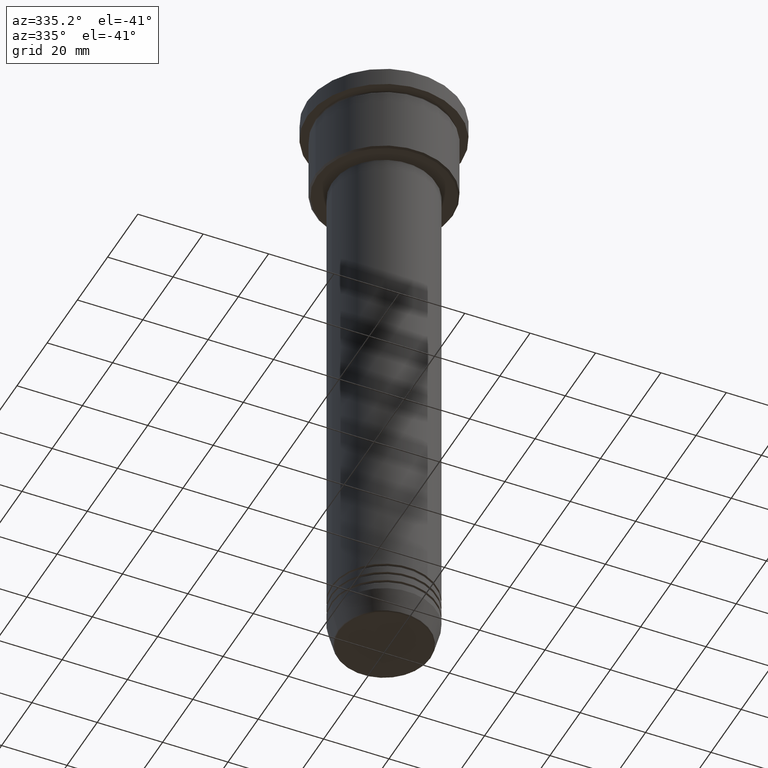
[diagram: clean part render]
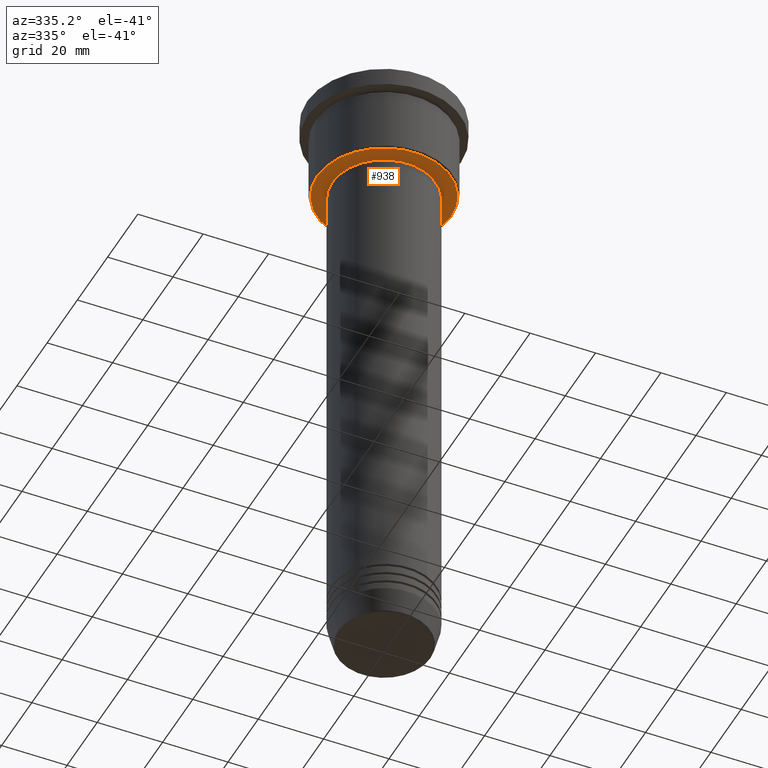
[diagram: same view with one face highlighted and labeled with its STEP entity id]
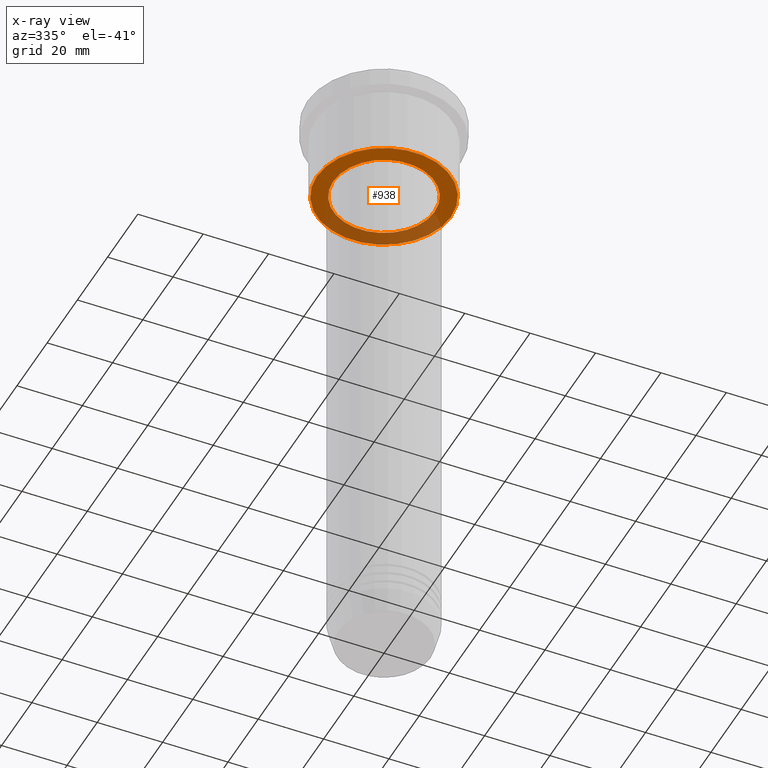
[diagram: x-ray of the same camera — body ghosted, the highlighted face saturated]
A machine part, auxiliary view. The second image highlights one B-rep face of the part: STEP entity #938.
The next image is the same camera in x-ray: the body ghosted, the highlighted face saturated — about 32% of this face is hidden behind the body in this view.
In plain terms, the highlighted planar face has unit normal (0, 0, -1).
Its self-contained STEP definition (entity closure, byte-faithful):
#14 = EDGE_CURVE ( 'NONE', #883, #701, #656, .T. ) ;
#52 = PLANE ( 'NONE',  #548 ) ;
#56 = DIRECTION ( 'NONE',  ( 0.000000000000000000, 0.000000000000000000, -1.000000000000000000 ) ) ;
#70 = ORIENTED_EDGE ( 'NONE', *, *, #14, .T. ) ;
#84 = CARTESIAN_POINT ( 'NONE',  ( 20.50000000000000355, 0.000000000000000000, -27.00000000000000000 ) ) ;
#89 = CIRCLE ( 'NONE', #930, 15.50000000000000000 ) ;
#90 = CARTESIAN_POINT ( 'NONE',  ( -20.50000000000000355, 2.541142108230758269E-15, -27.00000000000000000 ) ) ;
#120 = CARTESIAN_POINT ( 'NONE',  ( 0.000000000000000000, 21.00000000000000000, -27.00000000000000000 ) ) ;
#248 = CARTESIAN_POINT ( 'NONE',  ( 0.000000000000000000, 0.000000000000000000, -27.00000000000000000 ) ) ;
#256 = CARTESIAN_POINT ( 'NONE',  ( 0.000000000000000000, 0.000000000000000000, -27.00000000000000000 ) ) ;
#271 = EDGE_LOOP ( 'NONE', ( #70, #734 ) ) ;
#306 = DIRECTION ( 'NONE',  ( -1.000000000000000000, 0.000000000000000000, -0.000000000000000000 ) ) ;
#312 = DIRECTION ( 'NONE',  ( 0.000000000000000000, 0.000000000000000000, -1.000000000000000000 ) ) ;
#319 = CARTESIAN_POINT ( 'NONE',  ( -15.50000000000000000, 1.898202538678397557E-15, -27.00000000000000000 ) ) ;
#322 = CARTESIAN_POINT ( 'NONE',  ( 0.000000000000000000, 0.000000000000000000, -27.00000000000000000 ) ) ;
#329 = EDGE_LOOP ( 'NONE', ( #634, #671 ) ) ;
#338 = DIRECTION ( 'NONE',  ( -0.000000000000000000, -0.000000000000000000, 1.000000000000000000 ) ) ;
#343 = EDGE_CURVE ( 'NONE', #701, #883, #1110, .T. ) ;
#409 = FACE_OUTER_BOUND ( 'NONE', #271, .T. ) ;
#413 = EDGE_CURVE ( 'NONE', #1019, #512, #89, .T. ) ;
#449 = EDGE_CURVE ( 'NONE', #512, #1019, #580, .T. ) ;
#512 = VERTEX_POINT ( 'NONE', #319 ) ;
#526 = DIRECTION ( 'NONE',  ( -1.000000000000000000, 0.000000000000000000, 0.000000000000000000 ) ) ;
#541 = DIRECTION ( 'NONE',  ( 1.000000000000000000, 0.000000000000000000, 0.000000000000000000 ) ) ;
#543 = CARTESIAN_POINT ( 'NONE',  ( 15.50000000000000000, 0.000000000000000000, -27.00000000000000000 ) ) ;
#548 = AXIS2_PLACEMENT_3D ( 'NONE', #120, #312, #306 ) ;
#580 = CIRCLE ( 'NONE', #772, 15.50000000000000000 ) ;
#614 = DIRECTION ( 'NONE',  ( 0.000000000000000000, 0.000000000000000000, -1.000000000000000000 ) ) ;
#634 = ORIENTED_EDGE ( 'NONE', *, *, #413, .T. ) ;
#656 = CIRCLE ( 'NONE', #890, 20.50000000000000355 ) ;
#671 = ORIENTED_EDGE ( 'NONE', *, *, #449, .T. ) ;
#701 = VERTEX_POINT ( 'NONE', #90 ) ;
#702 = FACE_BOUND ( 'NONE', #329, .T. ) ;
#716 = DIRECTION ( 'NONE',  ( -0.000000000000000000, -0.000000000000000000, 1.000000000000000000 ) ) ;
#734 = ORIENTED_EDGE ( 'NONE', *, *, #343, .T. ) ;
#772 = AXIS2_PLACEMENT_3D ( 'NONE', #322, #338, #541 ) ;
#799 = DIRECTION ( 'NONE',  ( -1.000000000000000000, 0.000000000000000000, 0.000000000000000000 ) ) ;
#880 = CARTESIAN_POINT ( 'NONE',  ( 0.000000000000000000, 0.000000000000000000, -27.00000000000000000 ) ) ;
#883 = VERTEX_POINT ( 'NONE', #84 ) ;
#890 = AXIS2_PLACEMENT_3D ( 'NONE', #880, #56, #799 ) ;
#930 = AXIS2_PLACEMENT_3D ( 'NONE', #248, #716, #988 ) ;
#938 = ADVANCED_FACE ( 'NONE', ( #409, #702 ), #52, .T. ) ;
#946 = AXIS2_PLACEMENT_3D ( 'NONE', #256, #614, #526 ) ;
#988 = DIRECTION ( 'NONE',  ( 1.000000000000000000, 0.000000000000000000, 0.000000000000000000 ) ) ;
#1019 = VERTEX_POINT ( 'NONE', #543 ) ;
#1110 = CIRCLE ( 'NONE', #946, 20.50000000000000355 ) ;